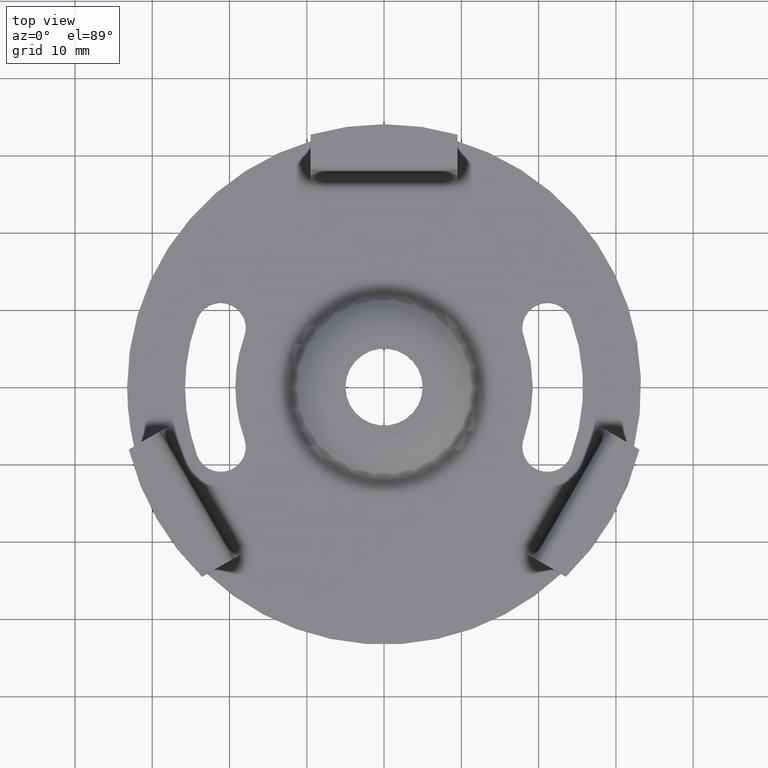
[diagram: clean part render]
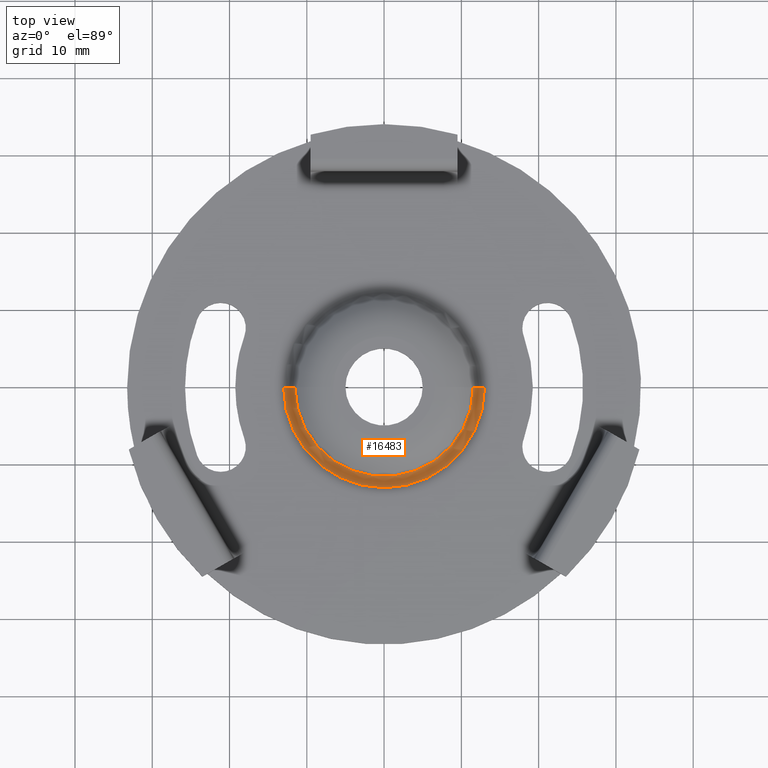
[diagram: same view with one face highlighted and labeled with its STEP entity id]
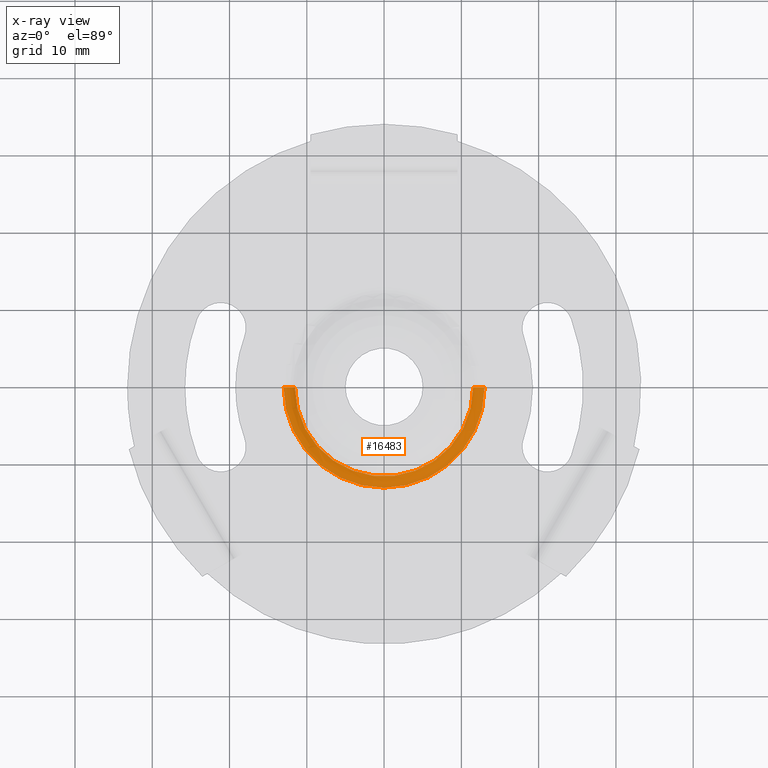
[diagram: x-ray of the same camera — body ghosted, the highlighted face saturated]
A machine part, top view. The second image highlights one B-rep face of the part: STEP entity #16483.
The next image is the same camera in x-ray: the body ghosted, the highlighted face saturated — about 0% of this face is hidden behind the body in this view.
In plain terms, the highlighted toroidal blend (fillet) surface has major radius 13 mm and minor (blend) radius 2 mm.
Its self-contained STEP definition (entity closure, byte-faithful):
#127 = CIRCLE ( 'NONE', #13726, 11.53695664186990655 ) ;
#298 = ORIENTED_EDGE ( 'NONE', *, *, #5491, .T. ) ;
#1511 = DIRECTION ( 'NONE',  ( 0.000000000000000000, 0.000000000000000000, 1.000000000000000000 ) ) ;
#2597 = CARTESIAN_POINT ( 'NONE',  ( 0.000000000000000000, 0.000000000000000000, 4.000000000000000000 ) ) ;
#2865 = ORIENTED_EDGE ( 'NONE', *, *, #6935, .F. ) ;
#3002 = EDGE_LOOP ( 'NONE', ( #298, #14772, #8093, #2865 ) ) ;
#3338 = FACE_OUTER_BOUND ( 'NONE', #3002, .T. ) ;
#3663 = VERTEX_POINT ( 'NONE', #15683 ) ;
#4401 = CARTESIAN_POINT ( 'NONE',  ( -13.00000000000000000, 1.592040838891559095E-15, 2.000000000000000000 ) ) ;
#4566 = CIRCLE ( 'NONE', #14901, 2.000000000000000000 ) ;
#5491 = EDGE_CURVE ( 'NONE', #6724, #3663, #127, .T. ) ;
#6122 = DIRECTION ( 'NONE',  ( 0.000000000000000000, -1.000000000000000000, 0.000000000000000000 ) ) ;
#6482 = CARTESIAN_POINT ( 'NONE',  ( 11.53695664186990655, 0.000000000000000000, 2.636363636363644236 ) ) ;
#6724 = VERTEX_POINT ( 'NONE', #6482 ) ;
#6935 = EDGE_CURVE ( 'NONE', #6724, #9541, #12018, .T. ) ;
#7509 = DIRECTION ( 'NONE',  ( 0.000000000000000000, 0.000000000000000000, -1.000000000000000000 ) ) ;
#7574 = DIRECTION ( 'NONE',  ( -1.000000000000000000, 1.224646799147352468E-16, 0.000000000000000000 ) ) ;
#8093 = ORIENTED_EDGE ( 'NONE', *, *, #11434, .F. ) ;
#8278 = TOROIDAL_SURFACE ( 'NONE', #13988, 13.00000000000000000, 2.000000000000000000 ) ;
#9541 = VERTEX_POINT ( 'NONE', #14464 ) ;
#9986 = EDGE_CURVE ( 'NONE', #3663, #13516, #4566, .T. ) ;
#10107 = DIRECTION ( 'NONE',  ( 1.000000000000000000, 0.000000000000000000, 0.000000000000000000 ) ) ;
#11305 = DIRECTION ( 'NONE',  ( -0.000000000000000000, -0.000000000000000000, -1.000000000000000000 ) ) ;
#11430 = CARTESIAN_POINT ( 'NONE',  ( 0.000000000000000000, 0.000000000000000000, 2.000000000000000000 ) ) ;
#11434 = EDGE_CURVE ( 'NONE', #9541, #13516, #15737, .T. ) ;
#11975 = AXIS2_PLACEMENT_3D ( 'NONE', #12706, #6122, #7509 ) ;
#12018 = CIRCLE ( 'NONE', #11975, 2.000000000000000000 ) ;
#12706 = CARTESIAN_POINT ( 'NONE',  ( 13.00000000000000000, 0.000000000000000000, 4.000000000000000000 ) ) ;
#13516 = VERTEX_POINT ( 'NONE', #4401 ) ;
#13726 = AXIS2_PLACEMENT_3D ( 'NONE', #16046, #16099, #14731 ) ;
#13988 = AXIS2_PLACEMENT_3D ( 'NONE', #2597, #1511, #15667 ) ;
#14464 = CARTESIAN_POINT ( 'NONE',  ( 13.00000000000000000, 0.000000000000000000, 2.000000000000000000 ) ) ;
#14731 = DIRECTION ( 'NONE',  ( 1.000000000000000000, 0.000000000000000000, 0.000000000000000000 ) ) ;
#14772 = ORIENTED_EDGE ( 'NONE', *, *, #9986, .T. ) ;
#14901 = AXIS2_PLACEMENT_3D ( 'NONE', #16865, #15599, #7574 ) ;
#15148 = AXIS2_PLACEMENT_3D ( 'NONE', #11430, #11305, #10107 ) ;
#15599 = DIRECTION ( 'NONE',  ( 1.224646799147353207E-16, 1.000000000000000000, -0.000000000000000000 ) ) ;
#15667 = DIRECTION ( 'NONE',  ( 1.000000000000000000, 0.000000000000000000, 0.000000000000000000 ) ) ;
#15683 = CARTESIAN_POINT ( 'NONE',  ( -11.53695664186990477, 1.502455270614168473E-15, 2.636363636363644236 ) ) ;
#15737 = CIRCLE ( 'NONE', #15148, 13.00000000000000000 ) ;
#16046 = CARTESIAN_POINT ( 'NONE',  ( 0.000000000000000000, 0.000000000000000000, 2.636363636363644236 ) ) ;
#16099 = DIRECTION ( 'NONE',  ( -0.000000000000000000, -0.000000000000000000, -1.000000000000000000 ) ) ;
#16483 = ADVANCED_FACE ( 'NONE', ( #3338 ), #8278, .F. ) ;
#16865 = CARTESIAN_POINT ( 'NONE',  ( -13.00000000000000000, 1.592040838891559095E-15, 4.000000000000000000 ) ) ;